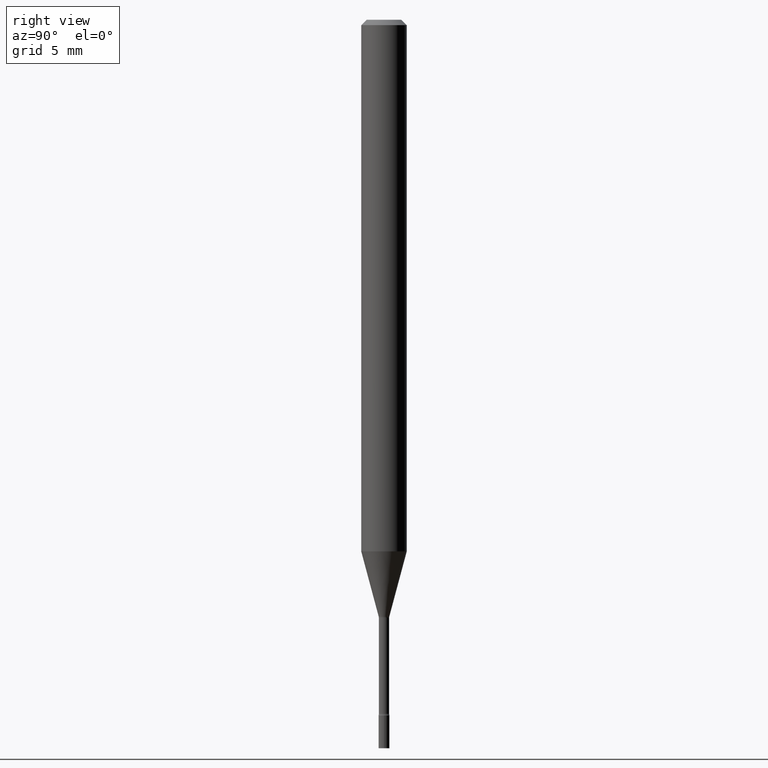
[diagram: clean part render]
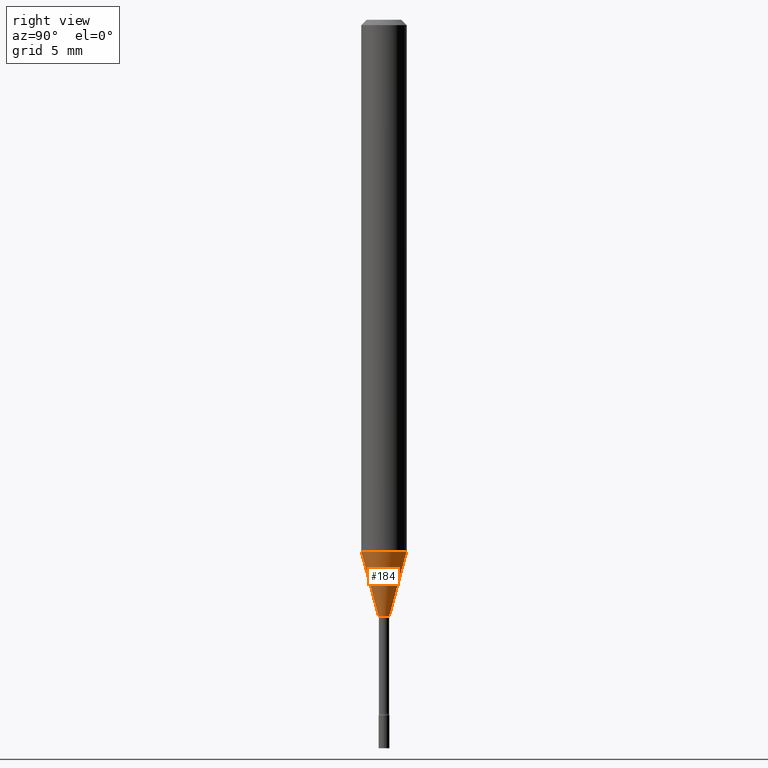
[diagram: same view with one face highlighted and labeled with its STEP entity id]
A machine part, right view. The second image highlights one B-rep face of the part: STEP entity #184.
In plain terms, the highlighted conical surface has half-angle 15 deg.
Its self-contained STEP definition (entity closure, byte-faithful):
#11 = CIRCLE ( 'NONE', #303, 0.06250000000000000000 ) ;
#24 = EDGE_LOOP ( 'NONE', ( #413, #115, #288, #74 ) ) ;
#30 = VECTOR ( 'NONE', #298, 39.37007874015748143 ) ;
#72 = DIRECTION ( 'NONE',  ( -6.982962677686265133E-15, -1.000000000000000000, 0.000000000000000000 ) ) ;
#74 = ORIENTED_EDGE ( 'NONE', *, *, #425, .F. ) ;
#85 = VERTEX_POINT ( 'NONE', #345 ) ;
#91 = VERTEX_POINT ( 'NONE', #338 ) ;
#115 = ORIENTED_EDGE ( 'NONE', *, *, #122, .T. ) ;
#122 = EDGE_CURVE ( 'NONE', #206, #91, #401, .T. ) ;
#135 = CARTESIAN_POINT ( 'NONE',  ( 3.568789263775920092E-29, -5.095432431713896168E-15, -1.459368740913666640 ) ) ;
#145 = EDGE_CURVE ( 'NONE', #291, #206, #211, .T. ) ;
#157 = CARTESIAN_POINT ( 'NONE',  ( 2.739537045417059993E-16, 0.01461111260565822224, -1.638092501787273170 ) ) ;
#168 = DIRECTION ( 'NONE',  ( -6.982962677686265922E-15, -1.000000000000000000, 4.370956789862821150E-15 ) ) ;
#172 = AXIS2_PLACEMENT_3D ( 'NONE', #274, #268, #72 ) ;
#175 = CARTESIAN_POINT ( 'NONE',  ( -1.020288540047825728E-16, -0.01461111260566966275, -1.638092501787273170 ) ) ;
#184 = ADVANCED_FACE ( 'NONE', ( #270 ), #514, .T. ) ;
#196 = VECTOR ( 'NONE', #230, 39.37007874015748854 ) ;
#206 = VERTEX_POINT ( 'NONE', #157 ) ;
#211 = CIRCLE ( 'NONE', #172, 0.01461111260566394336 ) ;
#230 = DIRECTION ( 'NONE',  ( 1.839019923739597949E-15, 0.2588190451025246253, 0.9659258262890670910 ) ) ;
#236 = DIRECTION ( 'NONE',  ( -6.982962677686265133E-15, -1.000000000000000000, 0.000000000000000000 ) ) ;
#268 = DIRECTION ( 'NONE',  ( -2.445433538299312121E-29, 3.491531844462969352E-15, 1.000000000000000000 ) ) ;
#270 = FACE_OUTER_BOUND ( 'NONE', #24, .T. ) ;
#274 = CARTESIAN_POINT ( 'NONE',  ( 4.005846342707224215E-29, -5.719452134166278044E-15, -1.638092501787273170 ) ) ;
#277 = CARTESIAN_POINT ( 'NONE',  ( 1.038181992333134892E-16, 0.01461111260565822224, -1.638092501787273170 ) ) ;
#288 = ORIENTED_EDGE ( 'NONE', *, *, #308, .F. ) ;
#291 = VERTEX_POINT ( 'NONE', #175 ) ;
#298 = DIRECTION ( 'NONE',  ( -1.807323732225328167E-15, -0.2588190451025179084, 0.9659258262890690894 ) ) ;
#303 = AXIS2_PLACEMENT_3D ( 'NONE', #135, #414, #168 ) ;
#308 = EDGE_CURVE ( 'NONE', #85, #91, #11, .T. ) ;
#338 = CARTESIAN_POINT ( 'NONE',  ( 4.440892098500981149E-16, 0.06249999999999489297, -1.459368740913666862 ) ) ;
#345 = CARTESIAN_POINT ( 'NONE',  ( -4.364351673553560228E-16, -0.06250000000000510703, -1.459368740913666196 ) ) ;
#358 = DIRECTION ( 'NONE',  ( -2.445433538299312121E-29, 3.491531844462969352E-15, 1.000000000000000000 ) ) ;
#401 = LINE ( 'NONE', #277, #196 ) ;
#413 = ORIENTED_EDGE ( 'NONE', *, *, #145, .T. ) ;
#414 = DIRECTION ( 'NONE',  ( -2.445433538299312121E-29, 3.491531844462969352E-15, 1.000000000000000000 ) ) ;
#421 = CARTESIAN_POINT ( 'NONE',  ( -1.020288540047825728E-16, -0.01461111260566966275, -1.638092501787273170 ) ) ;
#423 = AXIS2_PLACEMENT_3D ( 'NONE', #473, #358, #236 ) ;
#425 = EDGE_CURVE ( 'NONE', #291, #85, #500, .T. ) ;
#473 = CARTESIAN_POINT ( 'NONE',  ( 4.005846342707224215E-29, -5.719452134166278044E-15, -1.638092501787273170 ) ) ;
#500 = LINE ( 'NONE', #421, #30 ) ;
#514 = CONICAL_SURFACE ( 'NONE', #423, 0.01461111260566394336, 0.2617993877991499629 ) ;